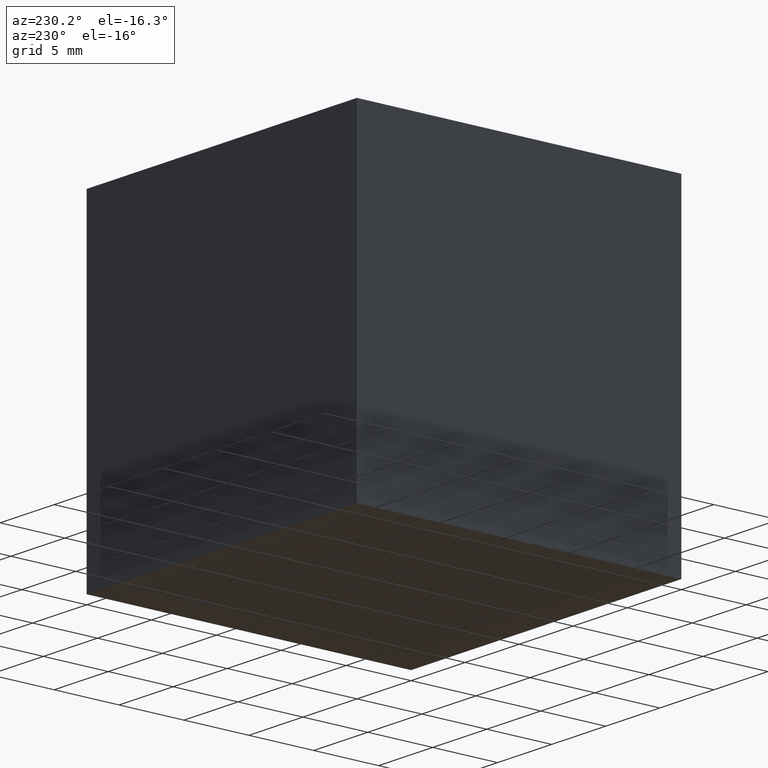
[diagram: clean part render]
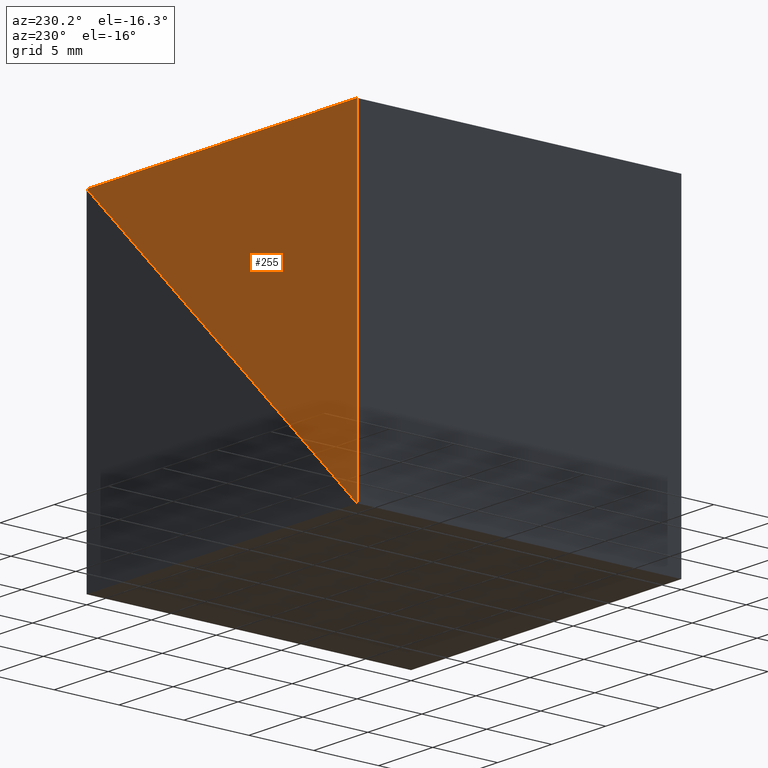
[diagram: same view with one face highlighted and labeled with its STEP entity id]
A machine part, auxiliary view. The second image highlights one B-rep face of the part: STEP entity #255.
In plain terms, the highlighted planar face has unit normal (0, 1, 0).
Its self-contained STEP definition (entity closure, byte-faithful):
#12 = VERTEX_POINT ( 'NONE', #295 ) ;
#19 = ORIENTED_EDGE ( 'NONE', *, *, #219, .F. ) ;
#22 = PLANE ( 'NONE',  #71 ) ;
#24 = DIRECTION ( 'NONE',  ( -1.000000000000000000, -0.0000000000000000000, -0.0000000000000000000 ) ) ;
#33 = DIRECTION ( 'NONE',  ( 0.0000000000000000000, 1.000000000000000000, 0.0000000000000000000 ) ) ;
#36 = DIRECTION ( 'NONE',  ( 0.0000000000000000000, -0.0000000000000000000, 1.000000000000000000 ) ) ;
#53 = VECTOR ( 'NONE', #81, 1000.000000000000000 ) ;
#71 = AXIS2_PLACEMENT_3D ( 'NONE', #250, #33, #36 ) ;
#80 = LINE ( 'NONE', #280, #100 ) ;
#81 = DIRECTION ( 'NONE',  ( -0.0000000000000000000, -0.0000000000000000000, -1.000000000000000000 ) ) ;
#95 = CARTESIAN_POINT ( 'NONE',  ( 0.0000000000000000000, 25.00000000000000000, 0.0000000000000000000 ) ) ;
#100 = VECTOR ( 'NONE', #232, 1000.000000000000100 ) ;
#129 = LINE ( 'NONE', #156, #53 ) ;
#131 = ORIENTED_EDGE ( 'NONE', *, *, #200, .F. ) ;
#136 = VECTOR ( 'NONE', #24, 1000.000000000000000 ) ;
#145 = LINE ( 'NONE', #289, #136 ) ;
#151 = EDGE_LOOP ( 'NONE', ( #258, #131, #19 ) ) ;
#154 = FACE_OUTER_BOUND ( 'NONE', #151, .T. ) ;
#156 = CARTESIAN_POINT ( 'NONE',  ( -25.00000000000000000, 25.00000000000000000, -25.00000000000000000 ) ) ;
#166 = VERTEX_POINT ( 'NONE', #95 ) ;
#200 = EDGE_CURVE ( 'NONE', #12, #246, #129, .T. ) ;
#217 = EDGE_CURVE ( 'NONE', #246, #166, #80, .T. ) ;
#219 = EDGE_CURVE ( 'NONE', #166, #12, #145, .T. ) ;
#232 = DIRECTION ( 'NONE',  ( 0.7071067811865474600, 0.0000000000000000000, 0.7071067811865474600 ) ) ;
#246 = VERTEX_POINT ( 'NONE', #296 ) ;
#250 = CARTESIAN_POINT ( 'NONE',  ( 0.0000000000000000000, 25.00000000000000000, 0.0000000000000000000 ) ) ;
#255 = ADVANCED_FACE ( 'NONE', ( #154 ), #22, .T. ) ;
#258 = ORIENTED_EDGE ( 'NONE', *, *, #217, .F. ) ;
#280 = CARTESIAN_POINT ( 'NONE',  ( 0.0000000000000000000, 25.00000000000000000, 0.0000000000000000000 ) ) ;
#289 = CARTESIAN_POINT ( 'NONE',  ( -25.00000000000000000, 25.00000000000000000, 0.0000000000000000000 ) ) ;
#295 = CARTESIAN_POINT ( 'NONE',  ( -25.00000000000000000, 25.00000000000000000, 0.0000000000000000000 ) ) ;
#296 = CARTESIAN_POINT ( 'NONE',  ( -25.00000000000000000, 25.00000000000000000, -25.00000000000000000 ) ) ;